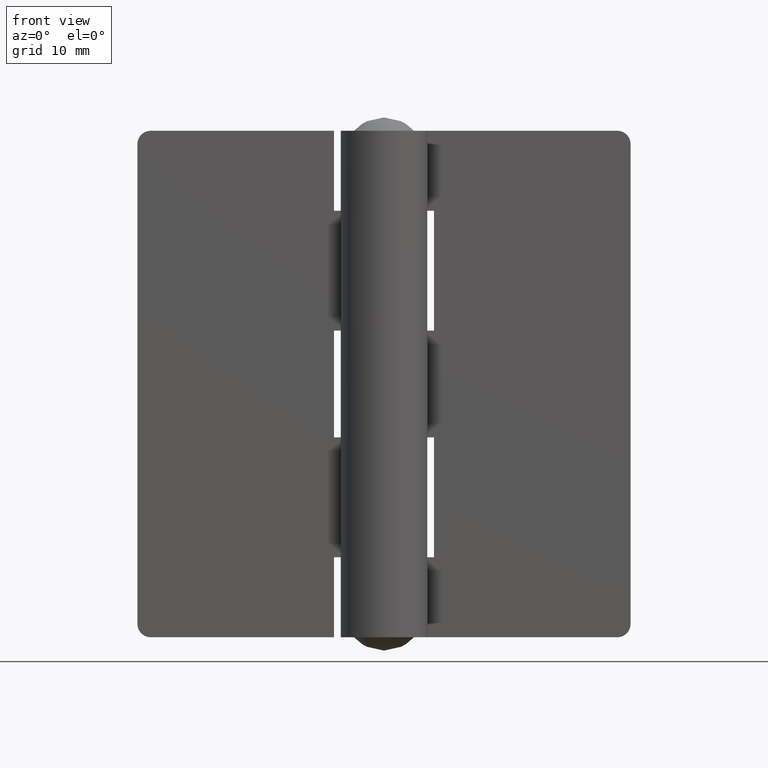
[diagram: clean part render]
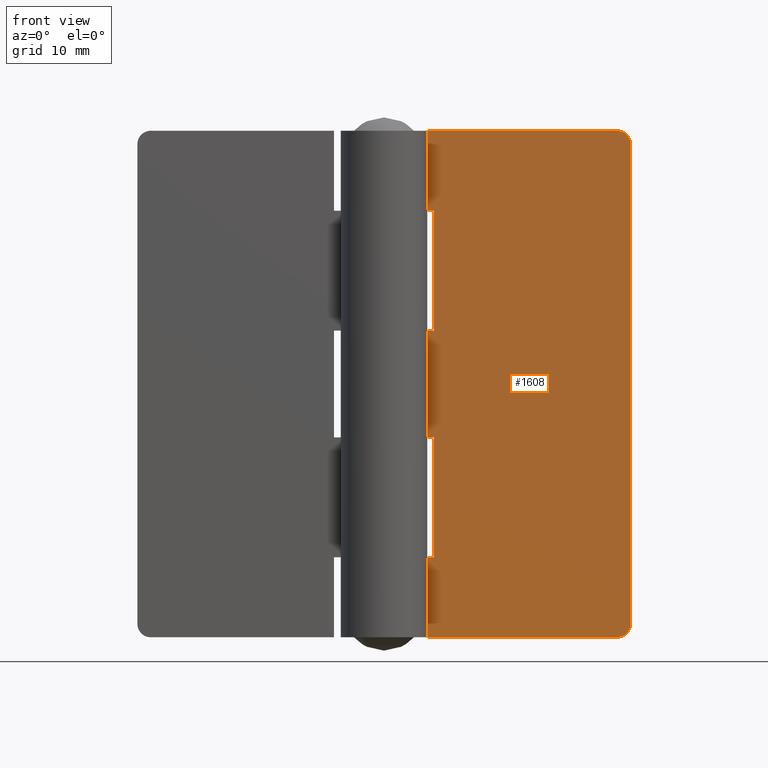
[diagram: same view with one face highlighted and labeled with its STEP entity id]
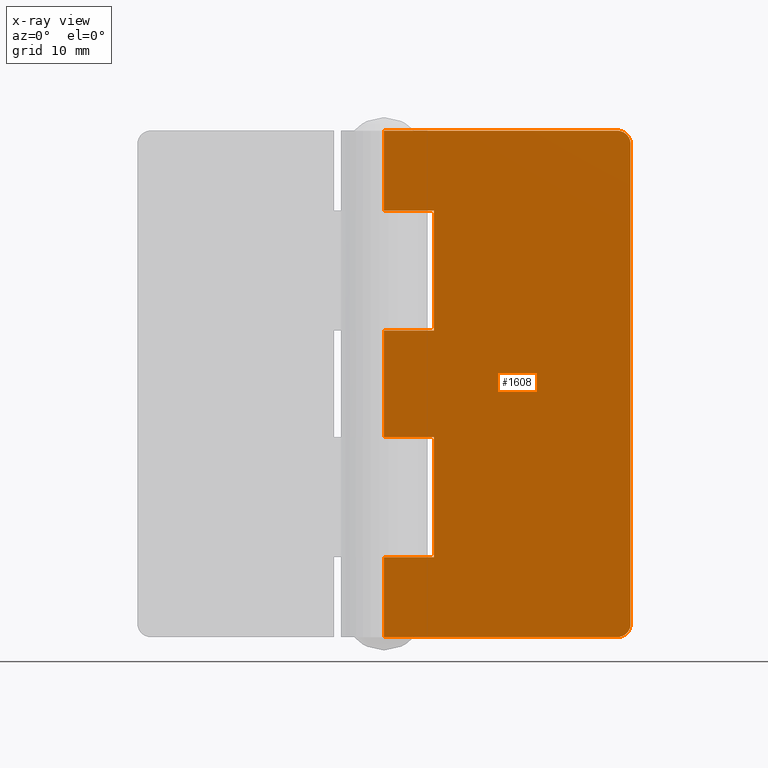
[diagram: x-ray of the same camera — body ghosted, the highlighted face saturated]
A machine part, front view. The second image highlights one B-rep face of the part: STEP entity #1608.
The next image is the same camera in x-ray: the body ghosted, the highlighted face saturated — about 0% of this face is hidden behind the body in this view.
In plain terms, the highlighted face is a freeform B-spline surface patch.
Its self-contained STEP definition (entity closure, byte-faithful):
#902=CARTESIAN_POINT('',(34.999985000000102,3.500000000000000,76.0));
#903=VERTEX_POINT('',#902);
#909=CARTESIAN_POINT('',(36.999985000000102,3.500000000000000,74.0));
#910=VERTEX_POINT('',#909);
#911=CARTESIAN_POINT('',(36.999985000000102,3.500000000000000,74.0));
#912=CARTESIAN_POINT('',(36.999985000000095,3.499999999999999,76.0));
#913=CARTESIAN_POINT('',(34.999985000000102,3.500000000000000,76.0));
#921=(BOUNDED_CURVE()B_SPLINE_CURVE(2,(#911,#912,#913),.UNSPECIFIED.,.F.,.U.)CURVE()GEOMETRIC_REPRESENTATION_ITEM()QUASI_UNIFORM_CURVE()RATIONAL_B_SPLINE_CURVE((1.0,0.707106781186548,1.0))REPRESENTATION_ITEM(''));
#922=EDGE_CURVE('',#910,#903,#921,.T.);
#963=CARTESIAN_POINT('',(36.999985000000102,3.500000000000000,2.0));
#964=VERTEX_POINT('',#963);
#970=CARTESIAN_POINT('',(34.999985000000102,3.500000000000000,0.0));
#971=VERTEX_POINT('',#970);
#972=CARTESIAN_POINT('',(34.999985000000102,3.500000000000000,0.0));
#973=CARTESIAN_POINT('',(36.999985000000095,3.499999999999999,0.0));
#974=CARTESIAN_POINT('',(36.999985000000102,3.500000000000000,2.0));
#982=(BOUNDED_CURVE()B_SPLINE_CURVE(2,(#972,#973,#974),.UNSPECIFIED.,.F.,.U.)CURVE()GEOMETRIC_REPRESENTATION_ITEM()QUASI_UNIFORM_CURVE()RATIONAL_B_SPLINE_CURVE((1.0,0.707106781186548,1.0))REPRESENTATION_ITEM(''));
#983=EDGE_CURVE('',#971,#964,#982,.T.);
#998=CARTESIAN_POINT('',(7.499985000000000,3.499999999999950,12.0));
#999=VERTEX_POINT('',#998);
#1000=CARTESIAN_POINT('',(7.499985000000000,3.499999999999950,30.0));
#1001=VERTEX_POINT('',#1000);
#1002=CARTESIAN_POINT('',(7.499985000000000,3.499999999999950,12.0));
#1003=CARTESIAN_POINT('',(7.499985000000000,3.499999999999950,30.0));
#1004=QUASI_UNIFORM_CURVE('',1,(#1002,#1003),.UNSPECIFIED.,.F.,.U.);
#1005=EDGE_CURVE('',#999,#1001,#1004,.T.);
#1034=CARTESIAN_POINT('',(0.0,3.500000000000000,12.0));
#1035=VERTEX_POINT('',#1034);
#1036=CARTESIAN_POINT('',(0.0,3.500000000000000,12.0));
#1037=CARTESIAN_POINT('',(7.499985000000000,3.499999999999950,12.0));
#1038=QUASI_UNIFORM_CURVE('',1,(#1036,#1037),.UNSPECIFIED.,.F.,.U.);
#1039=EDGE_CURVE('',#1035,#999,#1038,.T.);
#1104=CARTESIAN_POINT('',(0.0,3.500000000000000,30.0));
#1105=VERTEX_POINT('',#1104);
#1106=CARTESIAN_POINT('',(7.499985000000000,3.499999999999950,30.0));
#1107=CARTESIAN_POINT('',(0.0,3.500000000000000,30.0));
#1108=QUASI_UNIFORM_CURVE('',1,(#1106,#1107),.UNSPECIFIED.,.F.,.U.);
#1109=EDGE_CURVE('',#1001,#1105,#1108,.T.);
#1174=CARTESIAN_POINT('',(7.499985000000000,3.499999999999950,46.0));
#1175=VERTEX_POINT('',#1174);
#1176=CARTESIAN_POINT('',(7.499985000000000,3.499999999999950,64.0));
#1177=VERTEX_POINT('',#1176);
#1178=CARTESIAN_POINT('',(7.499985000000000,3.499999999999950,46.0));
#1179=CARTESIAN_POINT('',(7.499985000000000,3.499999999999950,64.0));
#1180=QUASI_UNIFORM_CURVE('',1,(#1178,#1179),.UNSPECIFIED.,.F.,.U.);
#1181=EDGE_CURVE('',#1175,#1177,#1180,.T.);
#1210=CARTESIAN_POINT('',(0.0,3.500000000000000,64.0));
#1211=VERTEX_POINT('',#1210);
#1212=CARTESIAN_POINT('',(7.499985000000000,3.499999999999950,64.0));
#1213=CARTESIAN_POINT('',(0.0,3.500000000000000,64.0));
#1214=QUASI_UNIFORM_CURVE('',1,(#1212,#1213),.UNSPECIFIED.,.F.,.U.);
#1215=EDGE_CURVE('',#1177,#1211,#1214,.T.);
#1280=CARTESIAN_POINT('',(0.0,3.500000000000000,46.0));
#1281=VERTEX_POINT('',#1280);
#1282=CARTESIAN_POINT('',(0.0,3.500000000000000,46.0));
#1283=CARTESIAN_POINT('',(7.499985000000000,3.499999999999950,46.0));
#1284=QUASI_UNIFORM_CURVE('',1,(#1282,#1283),.UNSPECIFIED.,.F.,.U.);
#1285=EDGE_CURVE('',#1281,#1175,#1284,.T.);
#1358=CARTESIAN_POINT('',(0.0,3.500000000000000,0.0));
#1359=VERTEX_POINT('',#1358);
#1360=CARTESIAN_POINT('',(34.999985000000102,3.500000000000000,0.0));
#1361=CARTESIAN_POINT('',(0.0,3.500000000000000,0.0));
#1362=QUASI_UNIFORM_CURVE('',1,(#1360,#1361),.UNSPECIFIED.,.F.,.U.);
#1363=EDGE_CURVE('',#971,#1359,#1362,.T.);
#1420=CARTESIAN_POINT('',(0.0,3.500000000000000,76.0));
#1421=VERTEX_POINT('',#1420);
#1422=CARTESIAN_POINT('',(34.999985000000102,3.500000000000000,76.0));
#1423=CARTESIAN_POINT('',(0.0,3.500000000000000,76.0));
#1424=QUASI_UNIFORM_CURVE('',1,(#1422,#1423),.UNSPECIFIED.,.F.,.U.);
#1425=EDGE_CURVE('',#903,#1421,#1424,.T.);
#1566=CARTESIAN_POINT('',(0.0,3.500000000000000,76.0));
#1567=CARTESIAN_POINT('',(0.0,3.500000000000000,64.0));
#1568=QUASI_UNIFORM_CURVE('',1,(#1566,#1567),.UNSPECIFIED.,.F.,.U.);
#1569=EDGE_CURVE('',#1421,#1211,#1568,.T.);
#1575=CARTESIAN_POINT('',(-1.848149179036853,3.500000000000000,79.796199852697242));
#1576=CARTESIAN_POINT('',(-1.848149179036853,3.500000000000000,-3.796201891176106));
#1577=CARTESIAN_POINT('',(38.848135171453883,3.500000000000000,79.796199852697242));
#1578=CARTESIAN_POINT('',(38.848135171453883,3.500000000000000,-3.796201891176106));
#1579=B_SPLINE_SURFACE_WITH_KNOTS('',1,1,((#1575,#1577),(#1576,#1578)),.UNSPECIFIED.,.F.,.F.,.U.,(2,2),(2,2),(0.0,83.592401743873353),(0.0,40.696284350490728),.UNSPECIFIED.);
#1580=ORIENTED_EDGE('',*,*,#1363,.F.);
#1581=ORIENTED_EDGE('',*,*,#983,.T.);
#1582=CARTESIAN_POINT('',(36.999985000000102,3.500000000000000,74.0));
#1583=CARTESIAN_POINT('',(36.999985000000102,3.500000000000000,2.0));
#1584=QUASI_UNIFORM_CURVE('',1,(#1582,#1583),.UNSPECIFIED.,.F.,.U.);
#1585=EDGE_CURVE('',#910,#964,#1584,.T.);
#1586=ORIENTED_EDGE('',*,*,#1585,.F.);
#1587=ORIENTED_EDGE('',*,*,#922,.T.);
#1588=ORIENTED_EDGE('',*,*,#1425,.T.);
#1589=ORIENTED_EDGE('',*,*,#1569,.T.);
#1590=ORIENTED_EDGE('',*,*,#1215,.F.);
#1591=ORIENTED_EDGE('',*,*,#1181,.F.);
#1592=ORIENTED_EDGE('',*,*,#1285,.F.);
#1593=CARTESIAN_POINT('',(0.0,3.500000000000000,46.0));
#1594=CARTESIAN_POINT('',(0.0,3.500000000000000,30.0));
#1595=QUASI_UNIFORM_CURVE('',1,(#1593,#1594),.UNSPECIFIED.,.F.,.U.);
#1596=EDGE_CURVE('',#1281,#1105,#1595,.T.);
#1597=ORIENTED_EDGE('',*,*,#1596,.T.);
#1598=ORIENTED_EDGE('',*,*,#1109,.F.);
#1599=ORIENTED_EDGE('',*,*,#1005,.F.);
#1600=ORIENTED_EDGE('',*,*,#1039,.F.);
#1601=CARTESIAN_POINT('',(0.0,3.500000000000000,12.0));
#1602=CARTESIAN_POINT('',(0.0,3.500000000000000,0.0));
#1603=QUASI_UNIFORM_CURVE('',1,(#1601,#1602),.UNSPECIFIED.,.F.,.U.);
#1604=EDGE_CURVE('',#1035,#1359,#1603,.T.);
#1605=ORIENTED_EDGE('',*,*,#1604,.T.);
#1606=EDGE_LOOP('',(#1580,#1581,#1586,#1587,#1588,#1589,#1590,#1591,#1592,#1597,#1598,#1599,#1600,#1605));
#1607=FACE_OUTER_BOUND('',#1606,.T.);
#1608=ADVANCED_FACE('',(#1607),#1579,.T.);